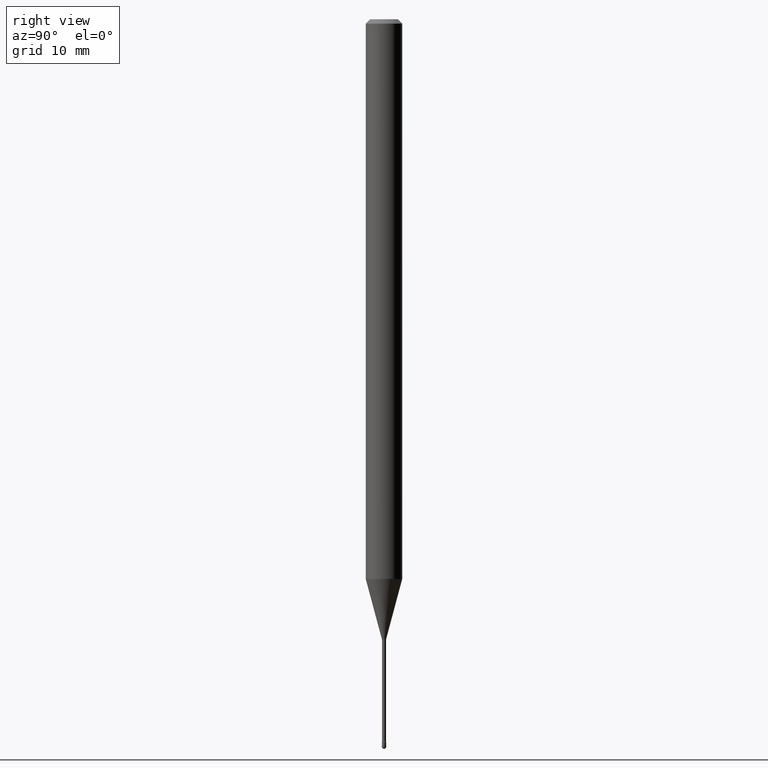
[diagram: clean part render]
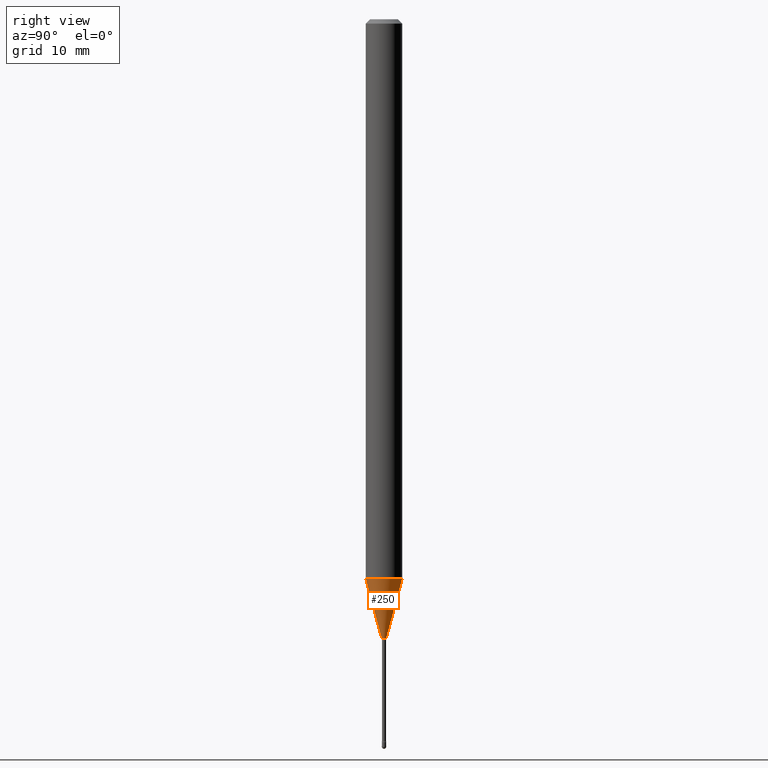
[diagram: same view with one face highlighted and labeled with its STEP entity id]
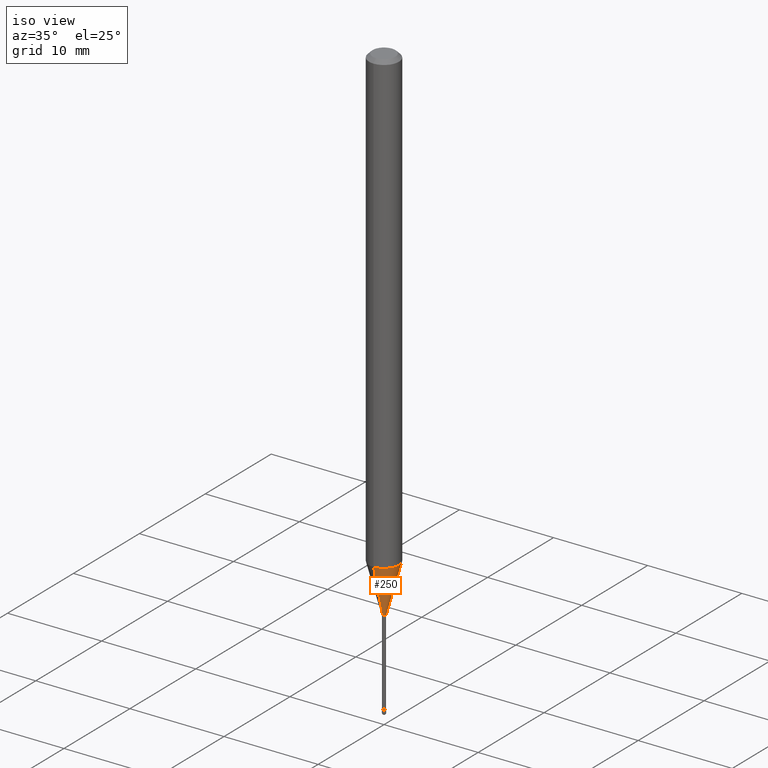
[diagram: same view with one face highlighted and labeled with its STEP entity id]
A machine part, right view. The second image highlights one B-rep face of the part: STEP entity #250.
A second angle (iso view) of the same face is appended — the face is thin or edge-on in the first view.
In plain terms, the highlighted conical surface has half-angle 15 deg.
Its self-contained STEP definition (entity closure, byte-faithful):
#3 = CARTESIAN_POINT ( 'NONE',  ( -5.279896712708281704E-17, -0.007561112605671394156, -2.123092501787273267 ) ) ;
#19 = VECTOR ( 'NONE', #525, 39.37007874015748143 ) ;
#44 = VERTEX_POINT ( 'NONE', #3 ) ;
#45 = DIRECTION ( 'NONE',  ( -2.445474421698968540E-29, 3.491473297107723247E-15, 1.000000000000000000 ) ) ;
#68 = EDGE_CURVE ( 'NONE', #44, #476, #527, .T. ) ;
#100 = CARTESIAN_POINT ( 'NONE',  ( -5.279896712708281704E-17, -0.007561112605671394156, -2.123092501787273267 ) ) ;
#104 = CARTESIAN_POINT ( 'NONE',  ( 4.440892098501092576E-16, 0.06249999999999329009, -1.918057782720306692 ) ) ;
#119 = CIRCLE ( 'NONE', #246, 0.007561112605663981683 ) ;
#129 = ORIENTED_EDGE ( 'NONE', *, *, #68, .F. ) ;
#137 = CARTESIAN_POINT ( 'NONE',  ( 5.191968408021648004E-29, -7.412720777279894928E-15, -2.123092501787273267 ) ) ;
#152 = CIRCLE ( 'NONE', #307, 0.06250000000000000000 ) ;
#156 = FACE_OUTER_BOUND ( 'NONE', #552, .T. ) ;
#174 = ORIENTED_EDGE ( 'NONE', *, *, #306, .T. ) ;
#218 = CONICAL_SURFACE ( 'NONE', #227, 0.007561112605663981683, 0.2617993877991501850 ) ;
#227 = AXIS2_PLACEMENT_3D ( 'NONE', #270, #538, #357 ) ;
#233 = EDGE_CURVE ( 'NONE', #336, #397, #416, .T. ) ;
#236 = CARTESIAN_POINT ( 'NONE',  ( 5.372493636223856207E-17, 0.007561112605656569209, -2.123092501787273267 ) ) ;
#246 = AXIS2_PLACEMENT_3D ( 'NONE', #137, #45, #398 ) ;
#248 = CARTESIAN_POINT ( 'NONE',  ( -4.364351673553447322E-16, -0.06250000000000668909, -1.918057782720306248 ) ) ;
#250 = ADVANCED_FACE ( 'NONE', ( #156 ), #218, .T. ) ;
#264 = CARTESIAN_POINT ( 'NONE',  ( 2.489070731061741502E-16, 0.007561112605656570944, -2.123092501787273267 ) ) ;
#270 = CARTESIAN_POINT ( 'NONE',  ( 5.191968408021648004E-29, -7.412720777279894928E-15, -2.123092501787273267 ) ) ;
#293 = VECTOR ( 'NONE', #450, 39.37007874015749564 ) ;
#306 = EDGE_CURVE ( 'NONE', #44, #336, #119, .T. ) ;
#307 = AXIS2_PLACEMENT_3D ( 'NONE', #410, #413, #498 ) ;
#336 = VERTEX_POINT ( 'NONE', #264 ) ;
#341 = ORIENTED_EDGE ( 'NONE', *, *, #233, .T. ) ;
#357 = DIRECTION ( 'NONE',  ( -6.982962677686265922E-15, -1.000000000000000000, 0.000000000000000000 ) ) ;
#396 = EDGE_CURVE ( 'NONE', #476, #397, #152, .T. ) ;
#397 = VERTEX_POINT ( 'NONE', #104 ) ;
#398 = DIRECTION ( 'NONE',  ( -6.982962677686265922E-15, -1.000000000000000000, 0.000000000000000000 ) ) ;
#410 = CARTESIAN_POINT ( 'NONE',  ( 4.690561246983147435E-29, -6.696847530677596410E-15, -1.918057782720306470 ) ) ;
#413 = DIRECTION ( 'NONE',  ( -2.445474421698968540E-29, 3.491473297107723247E-15, 1.000000000000000000 ) ) ;
#416 = LINE ( 'NONE', #236, #19 ) ;
#450 = DIRECTION ( 'NONE',  ( -1.807323732225329350E-15, -0.2588190451025180194, 0.9659258262890689783 ) ) ;
#476 = VERTEX_POINT ( 'NONE', #248 ) ;
#480 = ORIENTED_EDGE ( 'NONE', *, *, #396, .F. ) ;
#498 = DIRECTION ( 'NONE',  ( -6.982962677686265922E-15, -1.000000000000000000, 4.370956789862821150E-15 ) ) ;
#525 = DIRECTION ( 'NONE',  ( 1.839019923739599526E-15, 0.2588190451025248473, 0.9659258262890670910 ) ) ;
#527 = LINE ( 'NONE', #100, #293 ) ;
#538 = DIRECTION ( 'NONE',  ( -2.445474421698968540E-29, 3.491473297107723247E-15, 1.000000000000000000 ) ) ;
#552 = EDGE_LOOP ( 'NONE', ( #174, #341, #480, #129 ) ) ;